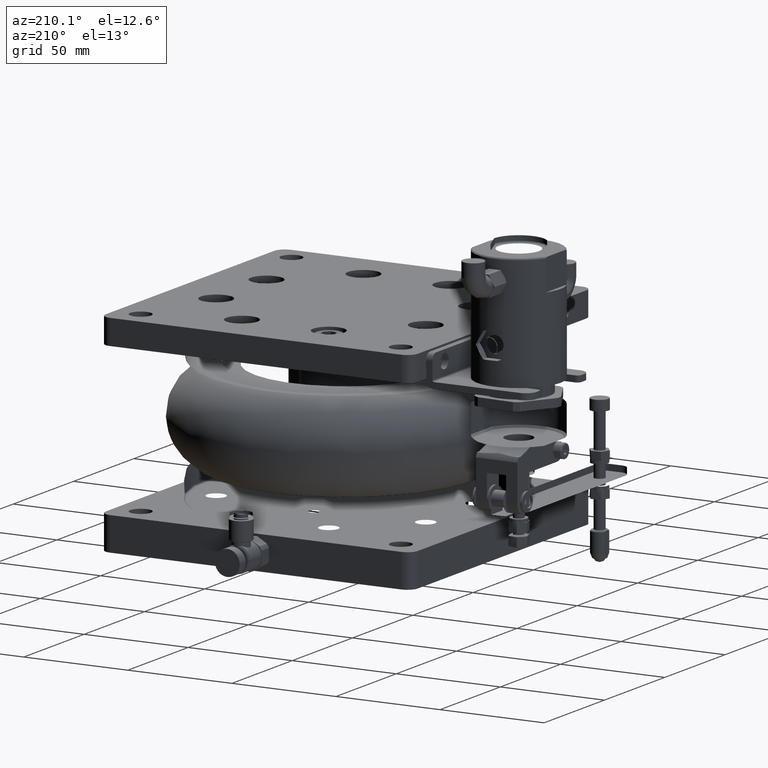
[diagram: clean part render]
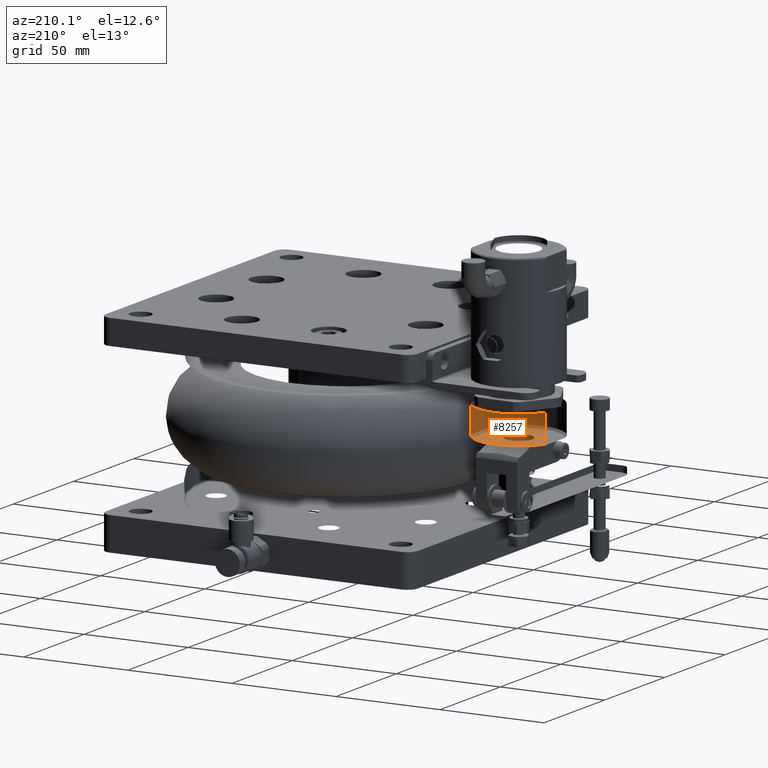
[diagram: same view with one face highlighted and labeled with its STEP entity id]
A machine part, auxiliary view. The second image highlights one B-rep face of the part: STEP entity #8257.
In plain terms, the highlighted cylindrical surface (partial cylindrical patch) has radius 20 mm, axis along (0, -0, -1).
Its self-contained STEP definition (entity closure, byte-faithful):
#312 = ORIENTED_EDGE ( 'NONE', *, *, #18353, .F. ) ;
#567 = AXIS2_PLACEMENT_3D ( 'NONE', #10565, #4200, #1971 ) ;
#1297 = CARTESIAN_POINT ( 'NONE',  ( 23.38160134876551766, 8.068348117136658004, 253.5662713193265176 ) ) ;
#1572 = ORIENTED_EDGE ( 'NONE', *, *, #6315, .T. ) ;
#1971 = DIRECTION ( 'NONE',  ( -1.000000000000000000, 4.336808689942024146E-16, -4.163336342344343337E-15 ) ) ;
#2544 = DIRECTION ( 'NONE',  ( 3.558006311864131448E-15, -6.303258598689900090E-16, -1.000000000000000000 ) ) ;
#3125 = AXIS2_PLACEMENT_3D ( 'NONE', #1297, #21379, #19407 ) ;
#3132 = ORIENTED_EDGE ( 'NONE', *, *, #9638, .F. ) ;
#4200 = DIRECTION ( 'NONE',  ( 3.558006311864130659E-15, -6.303258598689900090E-16, -1.000000000000000000 ) ) ;
#4932 = CARTESIAN_POINT ( 'NONE',  ( 41.38160134876550700, 16.78614600421801839, 253.5662713193265745 ) ) ;
#5066 = VERTEX_POINT ( 'NONE', #22644 ) ;
#6169 = LINE ( 'NONE', #14243, #18544 ) ;
#6315 = EDGE_CURVE ( 'NONE', #7034, #19556, #20828, .T. ) ;
#6515 = CARTESIAN_POINT ( 'NONE',  ( 41.38160134876571306, 16.78614600421798286, 195.9977288244027420 ) ) ;
#7034 = VERTEX_POINT ( 'NONE', #11379 ) ;
#7966 = VERTEX_POINT ( 'NONE', #6515 ) ;
#8257 = ADVANCED_FACE ( 'NONE', ( #8976 ), #25470, .F. ) ;
#8976 = FACE_OUTER_BOUND ( 'NONE', #15893, .T. ) ;
#9638 = EDGE_CURVE ( 'NONE', #7966, #19556, #23039, .T. ) ;
#10565 = CARTESIAN_POINT ( 'NONE',  ( 23.38160134876576635, 8.068348117136615372, 182.4977288244027704 ) ) ;
#10628 = CARTESIAN_POINT ( 'NONE',  ( 23.38160134876572371, 8.068348117136620701, 195.9977288244026852 ) ) ;
#11379 = CARTESIAN_POINT ( 'NONE',  ( 5.381601348765770787, 16.78614600421792602, 182.4977288244026852 ) ) ;
#12771 = ORIENTED_EDGE ( 'NONE', *, *, #15099, .F. ) ;
#14243 = CARTESIAN_POINT ( 'NONE',  ( 5.381601348765526538, 16.78614600421801129, 253.5662713193264608 ) ) ;
#15099 = EDGE_CURVE ( 'NONE', #5066, #7966, #19099, .T. ) ;
#15893 = EDGE_LOOP ( 'NONE', ( #1572, #3132, #12771, #312 ) ) ;
#16357 = DIRECTION ( 'NONE',  ( -3.558006311864131448E-15, 6.303258598689900090E-16, 1.000000000000000000 ) ) ;
#18353 = EDGE_CURVE ( 'NONE', #7034, #5066, #6169, .T. ) ;
#18544 = VECTOR ( 'NONE', #16357, 1000.000000000000000 ) ;
#18933 = DIRECTION ( 'NONE',  ( -1.000000000000000000, 0.000000000000000000, -4.163336342344337815E-15 ) ) ;
#19089 = DIRECTION ( 'NONE',  ( 3.558006311864131448E-15, -6.303258598689900090E-16, -1.000000000000000000 ) ) ;
#19099 = CIRCLE ( 'NONE', #22888, 19.99999999999999645 ) ;
#19407 = DIRECTION ( 'NONE',  ( -1.000000000000000000, 0.000000000000000000, -2.775557561562891745E-15 ) ) ;
#19556 = VERTEX_POINT ( 'NONE', #23862 ) ;
#20828 = CIRCLE ( 'NONE', #567, 19.99999999999997158 ) ;
#21379 = DIRECTION ( 'NONE',  ( 3.558006311864131448E-15, -6.303258598689900090E-16, -1.000000000000000000 ) ) ;
#22644 = CARTESIAN_POINT ( 'NONE',  ( 5.381601348765705062, 16.78614600421789760, 195.9977288244026283 ) ) ;
#22888 = AXIS2_PLACEMENT_3D ( 'NONE', #10628, #2544, #18933 ) ;
#23039 = LINE ( 'NONE', #4932, #25696 ) ;
#23862 = CARTESIAN_POINT ( 'NONE',  ( 41.38160134876576990, 16.78614600421791891, 182.4977288244027989 ) ) ;
#25470 = CYLINDRICAL_SURFACE ( 'NONE', #3125, 19.99999999999999645 ) ;
#25696 = VECTOR ( 'NONE', #19089, 1000.000000000000000 ) ;